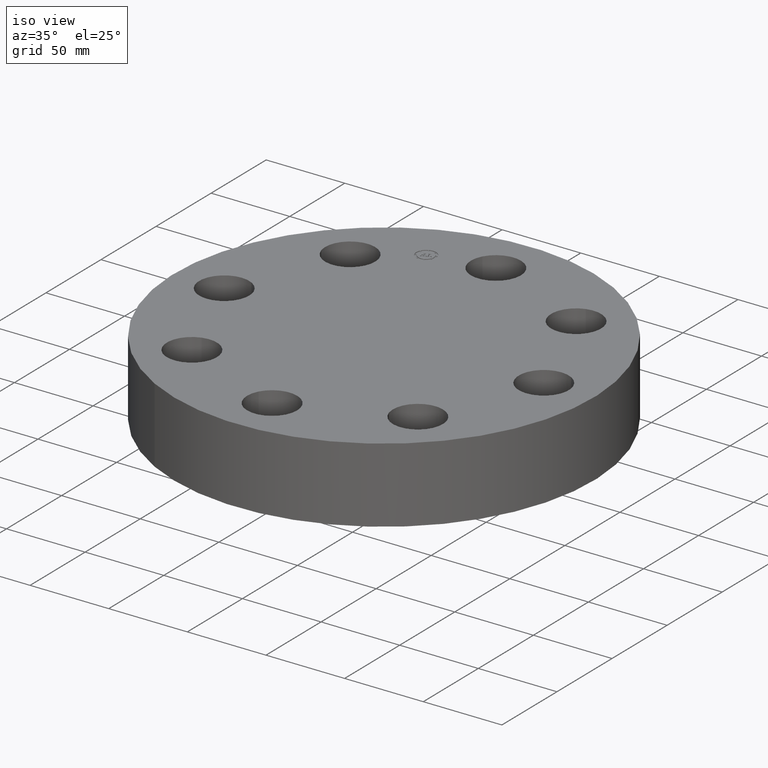
[diagram: clean part render]
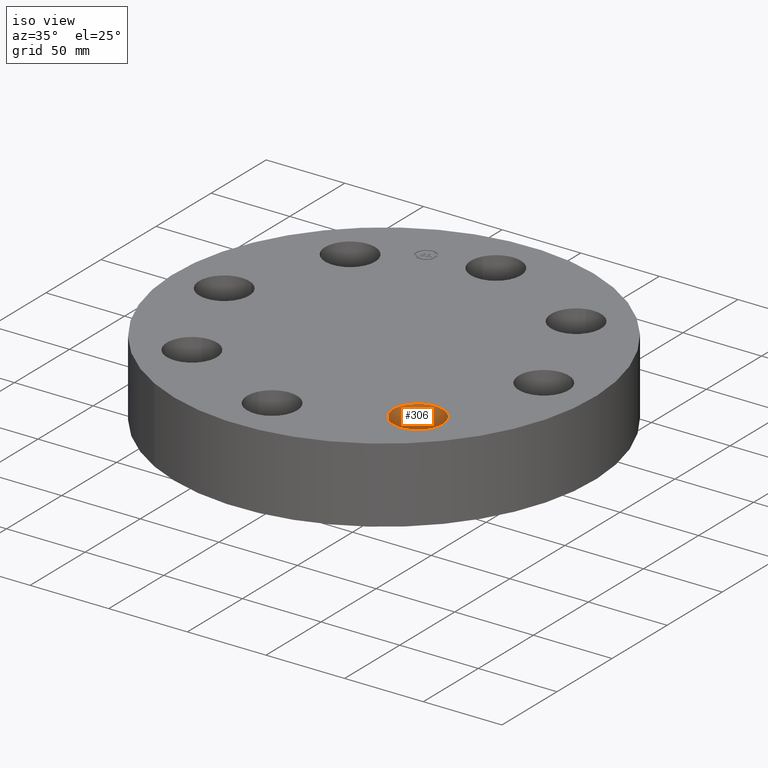
[diagram: same view with one face highlighted and labeled with its STEP entity id]
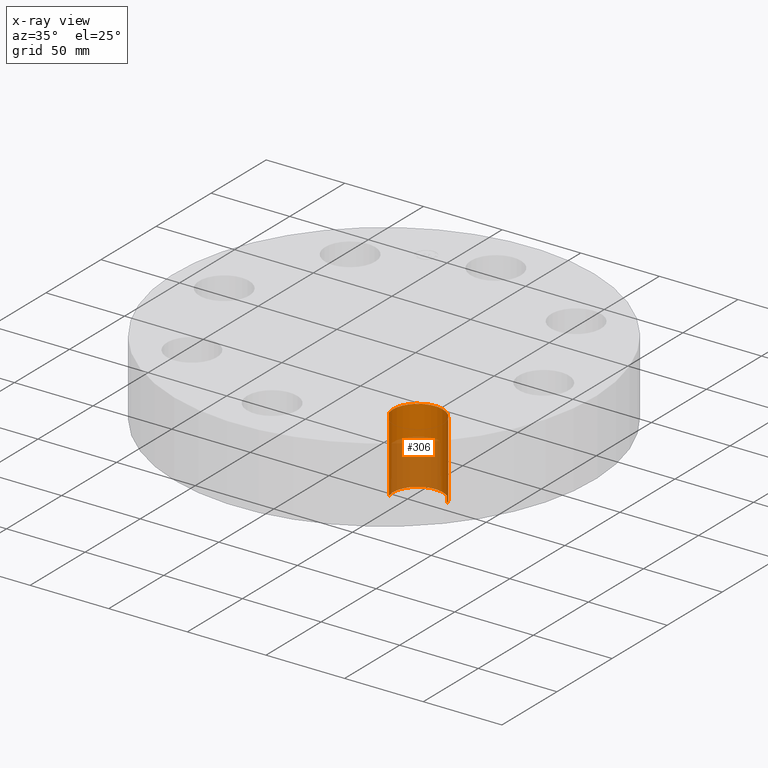
[diagram: x-ray of the same camera — body ghosted, the highlighted face saturated]
A machine part, iso view. The second image highlights one B-rep face of the part: STEP entity #306.
The next image is the same camera in x-ray: the body ghosted, the highlighted face saturated — about 50% of this face is hidden behind the body in this view.
In plain terms, the highlighted cylindrical surface (edge-blend (fillet) strip) has radius 15.875 mm, axis along (-0, 0, -1).
Its self-contained STEP definition (entity closure, byte-faithful):
#270=AXIS2_PLACEMENT_3D('Cylinder Axis2P3D',#267,#268,#269) ;
#283=AXIS2_PLACEMENT_3D('Circle Axis2P3D',#281,#282,$) ;
#297=AXIS2_PLACEMENT_3D('Circle Axis2P3D',#295,#296,$) ;
#267=CARTESIAN_POINT('Axis2P3D Location',(2.82842712476,-2.82842712476,1.87606299213)) ;
#272=CARTESIAN_POINT('Line Origine',(2.22870860601,-3.00438933172,0.940000000004)) ;
#276=CARTESIAN_POINT('Vertex',(2.22870860601,-3.00438933172,0.)) ;
#278=CARTESIAN_POINT('Vertex',(2.22870860601,-3.00438933172,1.88000000001)) ;
#281=CARTESIAN_POINT('Axis2P3D Location',(2.82842712476,-2.82842712476,0.)) ;
#285=CARTESIAN_POINT('Vertex',(3.4281456435,-2.65246491779,0.)) ;
#288=CARTESIAN_POINT('Line Origine',(3.4281456435,-2.65246491779,0.940000000004)) ;
#292=CARTESIAN_POINT('Vertex',(3.4281456435,-2.65246491779,1.88000000001)) ;
#295=CARTESIAN_POINT('Axis2P3D Location',(2.82842712476,-2.82842712476,1.88000000001)) ;
#268=DIRECTION('Axis2P3D Direction',(-0.,0.,-0.0393700787402)) ;
#269=DIRECTION('Axis2P3D XDirection',(0.0377775444876,0.0110842335096,-0.)) ;
#273=DIRECTION('Vector Direction',(0.,0.,-0.0393700787402)) ;
#282=DIRECTION('Axis2P3D Direction',(-0.,0.,-0.0393700787402)) ;
#289=DIRECTION('Vector Direction',(0.,0.,-0.0393700787402)) ;
#296=DIRECTION('Axis2P3D Direction',(-0.,0.,-0.0393700787402)) ;
#274=VECTOR('Line Direction',#273,0.0393700787402) ;
#290=VECTOR('Line Direction',#289,0.0393700787402) ;
#301=ORIENTED_EDGE('',*,*,#280,.F.) ;
#302=ORIENTED_EDGE('',*,*,#287,.T.) ;
#303=ORIENTED_EDGE('',*,*,#294,.T.) ;
#304=ORIENTED_EDGE('',*,*,#299,.F.) ;
#306=ADVANCED_FACE('PartBody',(#305),#271,.F.) ;
#284=CIRCLE('generated circle',#283,0.625000000002) ;
#298=CIRCLE('generated circle',#297,0.625000000002) ;
#271=CYLINDRICAL_SURFACE('generated cylinder',#270,0.625000000002) ;
#280=EDGE_CURVE('',#277,#279,#275,.F.) ;
#287=EDGE_CURVE('',#277,#286,#284,.T.) ;
#294=EDGE_CURVE('',#286,#293,#291,.F.) ;
#299=EDGE_CURVE('',#279,#293,#298,.T.) ;
#300=EDGE_LOOP('',(#301,#302,#303,#304)) ;
#305=FACE_OUTER_BOUND('',#300,.T.) ;
#275=LINE('Line',#272,#274) ;
#291=LINE('Line',#288,#290) ;
#277=VERTEX_POINT('',#276) ;
#279=VERTEX_POINT('',#278) ;
#286=VERTEX_POINT('',#285) ;
#293=VERTEX_POINT('',#292) ;